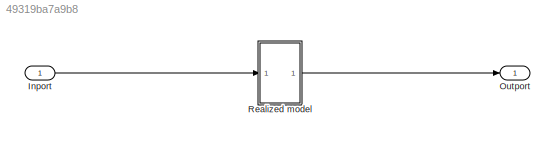
MODEL slx_49319ba7a9b8
KIND model
CONFIG AbsTol = auto
CONFIG EnableMultiTasking = off
CONFIG FixedStep = auto
CONFIG MaxStep = auto
CONFIG MinStep = auto
CONFIG RelTol = 1e-3
CONFIG SampleTimeConstraint = Unconstrained
CONFIG SolverName = VariableStepAuto
CONFIG StartTime = 0.0
CONFIG StopTime = 10.0
BLOCK [Inport] Inport
BLOCK [Outport] Outport
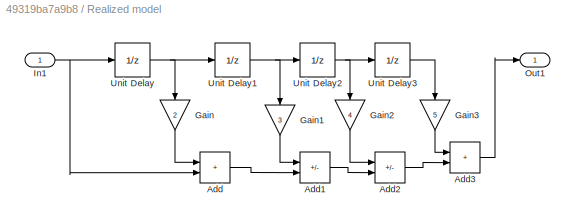
BLOCK [SubSystem] Realized model
  Ports = [1, 1]
  RequestExecContextInheritance = off
BLOCK [Sum] Realized model/Add
  IconShape = rectangular
  Ports = [2, 1]
BLOCK [Sum] Realized model/Add1
  IconShape = rectangular
  Inputs = -+
  Ports = [2, 1]
BLOCK [Sum] Realized model/Add2
  IconShape = rectangular
  Inputs = -+
  Ports = [2, 1]
BLOCK [Sum] Realized model/Add3
  IconShape = rectangular
  Ports = [2, 1]
BLOCK [Gain] Realized model/Gain
  Gain = 2
  NameLocation = left
BLOCK [Gain] Realized model/Gain1
  Gain = 3
  NameLocation = left
BLOCK [Gain] Realized model/Gain2
  Gain = 4
  NameLocation = left
BLOCK [Gain] Realized model/Gain3
  Gain = 5
  NameLocation = left
BLOCK [Inport] Realized model/In1
BLOCK [Outport] Realized model/Out1
BLOCK [UnitDelay] Realized model/Unit Delay
  HasFrameUpgradeWarning = on
  SampleTime = -1
BLOCK [UnitDelay] Realized model/Unit Delay1
  HasFrameUpgradeWarning = on
  SampleTime = -1
BLOCK [UnitDelay] Realized model/Unit Delay2
  HasFrameUpgradeWarning = on
  SampleTime = -1
BLOCK [UnitDelay] Realized model/Unit Delay3
  HasFrameUpgradeWarning = on
  SampleTime = -1
LINE Inport:1 -> Realized model:1
LINE Realized model/Add1:1 -> Realized model/Add2:2
LINE Realized model/Add2:1 -> Realized model/Add3:2
LINE Realized model/Add3:1 -> Realized model/Out1:1
LINE Realized model/Add:1 -> Realized model/Add1:2
LINE Realized model/Gain1:1 -> Realized model/Add1:1
LINE Realized model/Gain2:1 -> Realized model/Add2:1
LINE Realized model/Gain3:1 -> Realized model/Add3:1
LINE Realized model/Gain:1 -> Realized model/Add:1
NET Realized model/In1:1 -> Realized model/Add:2, Realized model/Unit Delay:1
NET Realized model/Unit Delay1:1 -> Realized model/Gain1:1, Realized model/Unit Delay2:1
NET Realized model/Unit Delay2:1 -> Realized model/Gain2:1, Realized model/Unit Delay3:1
LINE Realized model/Unit Delay3:1 -> Realized model/Gain3:1
NET Realized model/Unit Delay:1 -> Realized model/Gain:1, Realized model/Unit Delay1:1
LINE Realized model:1 -> Outport:1
note: NET lines group one-source signal fan-out (src -> all destinations, sorted); 1:1 wires keep LINE
